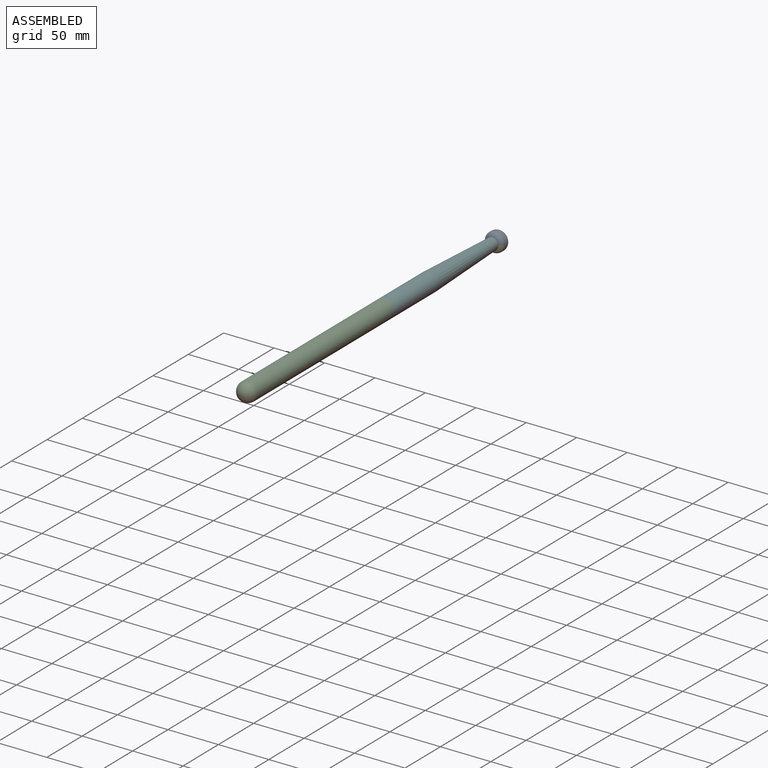
[diagram: assembled view]
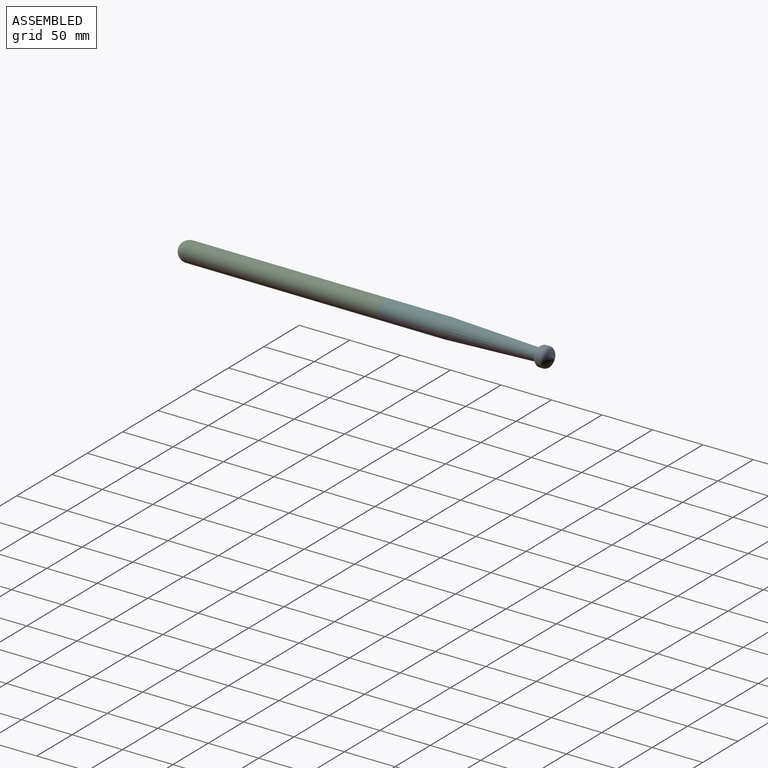
[diagram: assembled view, second angle]
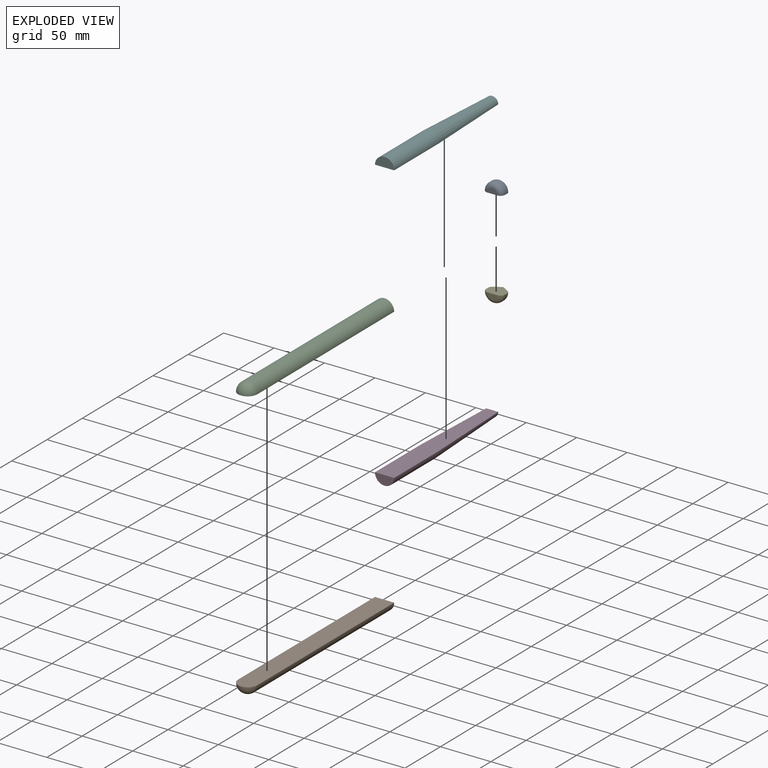
[diagram: exploded view]
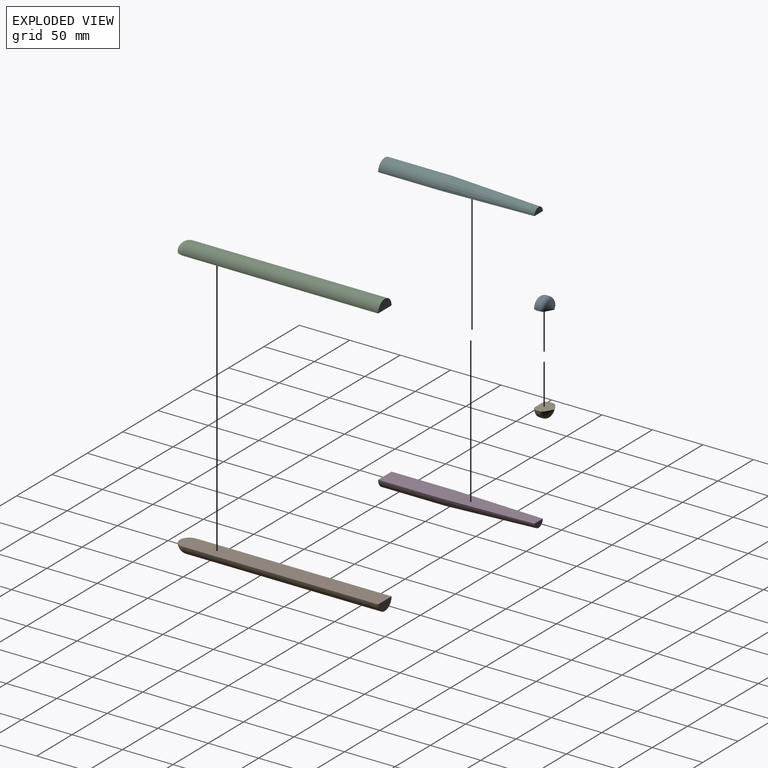
[diagram: exploded view, second angle]
ASSEMBLY  parts=6 mates=5
PART A: 6 faces, bbox 20.6x10.3x15.7 mm
  f0: cylinder r=9.53mm len=19.05mm, axis (0,0,-1), area 88.2mm2, adj f3,f4,f5
  f1: plane 9.91x4.95mm, normal (0,0,-1), area 38.5mm2, adj f3,f5
  f2: cone r=9.53mm half-angle=60deg, axis (0,0,-1), area 95mm2, adj f4,f5
  f3: torus R=4.95mm, axis (0,0,1), area 177.4mm2, adj f0,f1,f5
  f4: torus R=4.95mm, axis (0,0,-1), area 131.4mm2, adj f0,f2,f5
  f5: plane 19.05x15.66mm, normal (0,-1,0), area 234.7mm2, adj f0,f1,f2,f3,f4
PART B: 5 faces, bbox 19.1x203.2x9.5 mm
  f0: cylinder r=9.54mm len=193.68mm, axis (0,1,0), area 5804.3mm2, adj f1,f3,f4
  f1: plane 203.2x19.08mm, normal (0,0,-1), area 3838mm2, adj f0,f2,f3,f4
  f2: plane 0.03x0.01mm, normal (0,-1,0), area 0mm2, adj f1,f4
  f3: plane 19.08x9.54mm, normal (0,1,0), area 142.9mm2, adj f0,f1
  f4: torus R=0.01mm, axis (0,-1,0), area 285.7mm2, adj f0,f1,f2
PART C: same geometry as B
PART D: 7 faces, bbox 19.1x152.4x9.8 mm
  f0: plane 0.27x0mm, normal (0,-1,0), area 0mm2, adj f1,f4,f6
  f1: cone r=5.97mm half-angle=2.3deg, axis (0,-1,0), area 2167.4mm2, adj f0,f2,f3,f4,f6
  f2: plane 11.94x5.97mm, normal (0,1,0), area 56mm2, adj f1,f4
  f3: cylinder r=9.54mm len=63.5mm, axis (0,1,0), area 1903.1mm2, adj f1,f4,f5
  f4: plane 152.4x19.08mm, normal (0,0,-1), area 2590.2mm2, adj f0,f1,f2,f3,f5,f6
  f5: plane 19.08x9.54mm, normal (0,-1,0), area 142.9mm2, adj f3,f4
  f6: plane 0.27x0.1mm, normal (1,0,0), area 0mm2, adj f0,f1,f4
PART E: same geometry as A
PART F: same geometry as D
PLACE A rot(axis=(0,0.71,0.71),180deg) t=(-130.41,41.24,-111.79)mm
PLACE B rot(axis=(0,1,0),180deg) t=(-130.41,-121.32,-111.79)mm
PLACE C t=(-130.41,-121.32,-111.79)mm
PLACE D rot(axis=(0,1,0),180deg) t=(-130.41,31.08,-111.79)mm
PLACE E rot(axis=(-1,0,0),90deg) t=(-130.41,41.24,-111.79)mm
PLACE F t=(-130.41,31.08,-111.79)mm
MATE fastened A.f5 <-> E.f5  axis (0,0,-1) through (-130.41,37.81,-111.79)mm
MATE fastened D.f4 <-> F.f4  axis (0,0,1) through (-130.41,-50.83,-111.79)mm
MATE fastened E.f0 <-> D.f1  axis (0,-1,0) through (-130.41,31.08,-111.79)mm
MATE fastened B.f1 <-> C.f1  axis (0,0,1) through (-130.41,-221.92,-111.79)mm
MATE fastened C.f0 <-> F.f1  axis (0,1,0) through (-130.41,-121.32,-111.79)mm
